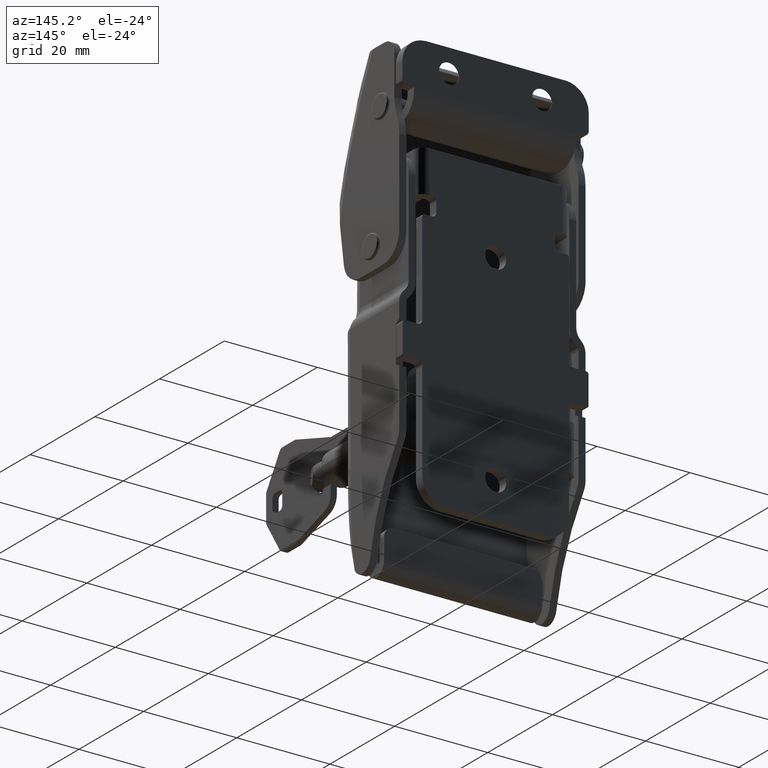
[diagram: clean part render]
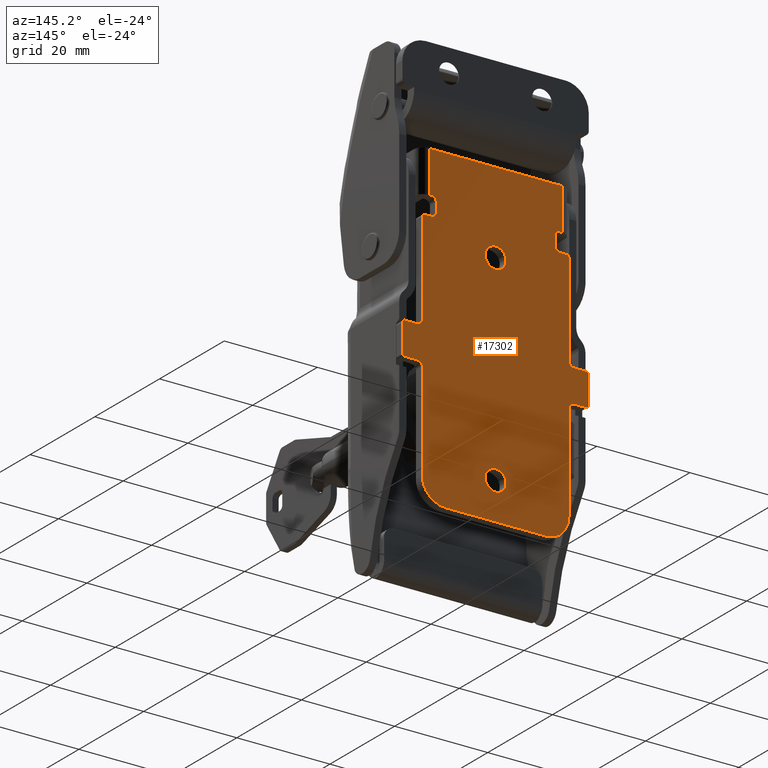
[diagram: same view with one face highlighted and labeled with its STEP entity id]
A machine part, auxiliary view. The second image highlights one B-rep face of the part: STEP entity #17302.
In plain terms, the highlighted face is a freeform B-spline surface patch.
Its self-contained STEP definition (entity closure, byte-faithful):
#14728=CARTESIAN_POINT('',(7.329959E-011,2.220446E-013,-40.750000000021203));
#14729=VERTEX_POINT('',#14728);
#14730=CARTESIAN_POINT('',(-2.243064000768788,2.221175E-013,-42.823467033903569));
#14731=VERTEX_POINT('',#14730);
#14732=CARTESIAN_POINT('',(7.329959E-011,2.220446E-013,-40.750000000021203));
#14733=CARTESIAN_POINT('',(-2.079878604799747,2.220446E-013,-40.750000000021188));
#14734=CARTESIAN_POINT('',(-2.243064000768788,2.221175E-013,-42.823467033903576));
#14742=(BOUNDED_CURVE()B_SPLINE_CURVE(2,(#14732,#14733,#14734),.UNSPECIFIED.,.F.,.U.)B_SPLINE_CURVE_WITH_KNOTS((3,3),(0.0,0.236331300521192),.UNSPECIFIED.)CURVE()GEOMETRIC_REPRESENTATION_ITEM()RATIONAL_B_SPLINE_CURVE((1.0,0.723120658735915,0.969723355938966))REPRESENTATION_ITEM(''));
#14743=EDGE_CURVE('',#14729,#14731,#14742,.T.);
#14745=CARTESIAN_POINT('',(2.243064000915386,2.221175E-013,-43.176532966138822));
#14746=VERTEX_POINT('',#14745);
#14747=CARTESIAN_POINT('',(2.243064000915386,2.221175E-013,-43.176532966138822));
#14748=CARTESIAN_POINT('',(2.250000000073299,2.220446E-013,-43.088402741521818));
#14749=CARTESIAN_POINT('',(2.250000000073299,2.220446E-013,-43.000000000021203));
#14750=CARTESIAN_POINT('',(2.250000000073299,2.220446E-013,-40.750000000021195));
#14751=CARTESIAN_POINT('',(7.329959E-011,2.220446E-013,-40.750000000021203));
#14759=(BOUNDED_CURVE()B_SPLINE_CURVE(2,(#14747,#14748,#14749,#14750,#14751),.UNSPECIFIED.,.F.,.U.)B_SPLINE_CURVE_WITH_KNOTS((3,2,3),(0.736331300521191,0.750000000000000,1.0),.UNSPECIFIED.)CURVE()GEOMETRIC_REPRESENTATION_ITEM()RATIONAL_B_SPLINE_CURVE((0.969723355938964,0.983986122450631,1.0,0.707106781186547,1.0))REPRESENTATION_ITEM(''));
#14760=EDGE_CURVE('',#14746,#14729,#14759,.T.);
#14827=CARTESIAN_POINT('',(7.329959E-011,2.220446E-013,-45.250000000021203));
#14828=VERTEX_POINT('',#14827);
#14829=CARTESIAN_POINT('',(-2.243064000768787,2.221175E-013,-42.823467033903569));
#14830=CARTESIAN_POINT('',(-2.249999999926700,2.220446E-013,-42.911597258520580));
#14831=CARTESIAN_POINT('',(-2.249999999926700,2.220446E-013,-43.000000000021203));
#14832=CARTESIAN_POINT('',(-2.249999999926700,2.220446E-013,-45.250000000021195));
#14833=CARTESIAN_POINT('',(7.329959E-011,2.220446E-013,-45.250000000021203));
#14841=(BOUNDED_CURVE()B_SPLINE_CURVE(2,(#14829,#14830,#14831,#14832,#14833),.UNSPECIFIED.,.F.,.U.)B_SPLINE_CURVE_WITH_KNOTS((3,2,3),(0.236331300521192,0.250000000000000,0.500000000000000),.UNSPECIFIED.)CURVE()GEOMETRIC_REPRESENTATION_ITEM()RATIONAL_B_SPLINE_CURVE((0.969723355938967,0.983986122450632,1.0,0.707106781186547,1.0))REPRESENTATION_ITEM(''));
#14842=EDGE_CURVE('',#14731,#14828,#14841,.T.);
#14876=CARTESIAN_POINT('',(7.329959E-011,2.220446E-013,-45.250000000021203));
#14877=CARTESIAN_POINT('',(2.079878604946338,2.220446E-013,-45.250000000021188));
#14878=CARTESIAN_POINT('',(2.243064000915386,2.221175E-013,-43.176532966138829));
#14886=(BOUNDED_CURVE()B_SPLINE_CURVE(2,(#14876,#14877,#14878),.UNSPECIFIED.,.F.,.U.)B_SPLINE_CURVE_WITH_KNOTS((3,3),(0.500000000000000,0.736331300521191),.UNSPECIFIED.)CURVE()GEOMETRIC_REPRESENTATION_ITEM()RATIONAL_B_SPLINE_CURVE((1.0,0.723120658735916,0.969723355938965))REPRESENTATION_ITEM(''));
#14887=EDGE_CURVE('',#14828,#14746,#14886,.T.);
#14910=CARTESIAN_POINT('',(-2.114575E-011,2.220446E-013,2.249999999978413));
#14911=VERTEX_POINT('',#14910);
#14912=CARTESIAN_POINT('',(-2.243064000863233,2.221175E-013,0.176532966096040));
#14913=VERTEX_POINT('',#14912);
#14914=CARTESIAN_POINT('',(-2.114575E-011,2.220446E-013,2.249999999978413));
#14915=CARTESIAN_POINT('',(-2.079878604894191,2.220446E-013,2.249999999978413));
#14916=CARTESIAN_POINT('',(-2.243064000863233,2.221175E-013,0.176532966096040));
#14924=(BOUNDED_CURVE()B_SPLINE_CURVE(2,(#14914,#14915,#14916),.UNSPECIFIED.,.F.,.U.)B_SPLINE_CURVE_WITH_KNOTS((3,3),(0.0,0.236331300521191),.UNSPECIFIED.)CURVE()GEOMETRIC_REPRESENTATION_ITEM()RATIONAL_B_SPLINE_CURVE((1.0,0.723120658735915,0.969723355938966))REPRESENTATION_ITEM(''));
#14925=EDGE_CURVE('',#14911,#14913,#14924,.T.);
#14927=CARTESIAN_POINT('',(2.243064000820941,2.221175E-013,-0.176532966139213));
#14928=VERTEX_POINT('',#14927);
#14929=CARTESIAN_POINT('',(2.243064000820941,2.221175E-013,-0.176532966139213));
#14930=CARTESIAN_POINT('',(2.249999999978854,2.220446E-013,-0.088402741522205));
#14931=CARTESIAN_POINT('',(2.249999999978854,2.220446E-013,-2.158629E-011));
#14932=CARTESIAN_POINT('',(2.249999999978853,2.220446E-013,2.249999999978414));
#14933=CARTESIAN_POINT('',(-2.114575E-011,2.220446E-013,2.249999999978413));
#14941=(BOUNDED_CURVE()B_SPLINE_CURVE(2,(#14929,#14930,#14931,#14932,#14933),.UNSPECIFIED.,.F.,.U.)B_SPLINE_CURVE_WITH_KNOTS((3,2,3),(0.736331300521191,0.750000000000000,1.0),.UNSPECIFIED.)CURVE()GEOMETRIC_REPRESENTATION_ITEM()RATIONAL_B_SPLINE_CURVE((0.969723355938966,0.983986122450632,1.0,0.707106781186547,1.0))REPRESENTATION_ITEM(''));
#14942=EDGE_CURVE('',#14928,#14911,#14941,.T.);
#15009=CARTESIAN_POINT('',(-2.114575E-011,2.220446E-013,-2.250000000021586));
#15010=VERTEX_POINT('',#15009);
#15011=CARTESIAN_POINT('',(-2.243064000863233,2.221175E-013,0.176532966096040));
#15012=CARTESIAN_POINT('',(-2.250000000021146,2.220446E-013,0.088402741479033));
#15013=CARTESIAN_POINT('',(-2.250000000021146,2.220446E-013,-2.158629E-011));
#15014=CARTESIAN_POINT('',(-2.250000000021146,2.220446E-013,-2.250000000021587));
#15015=CARTESIAN_POINT('',(-2.114575E-011,2.220446E-013,-2.250000000021586));
#15023=(BOUNDED_CURVE()B_SPLINE_CURVE(2,(#15011,#15012,#15013,#15014,#15015),.UNSPECIFIED.,.F.,.U.)B_SPLINE_CURVE_WITH_KNOTS((3,2,3),(0.236331300521191,0.250000000000000,0.500000000000000),.UNSPECIFIED.)CURVE()GEOMETRIC_REPRESENTATION_ITEM()RATIONAL_B_SPLINE_CURVE((0.969723355938966,0.983986122450632,1.0,0.707106781186547,1.0))REPRESENTATION_ITEM(''));
#15024=EDGE_CURVE('',#14913,#15010,#15023,.T.);
#15058=CARTESIAN_POINT('',(-2.114575E-011,2.220446E-013,-2.250000000021586));
#15059=CARTESIAN_POINT('',(2.079878604851892,2.220446E-013,-2.250000000021587));
#15060=CARTESIAN_POINT('',(2.243064000820941,2.221175E-013,-0.176532966139213));
#15068=(BOUNDED_CURVE()B_SPLINE_CURVE(2,(#15058,#15059,#15060),.UNSPECIFIED.,.F.,.U.)B_SPLINE_CURVE_WITH_KNOTS((3,3),(0.500000000000000,0.736331300521191),.UNSPECIFIED.)CURVE()GEOMETRIC_REPRESENTATION_ITEM()RATIONAL_B_SPLINE_CURVE((1.0,0.723120658735916,0.969723355938965))REPRESENTATION_ITEM(''));
#15069=EDGE_CURVE('',#15010,#14928,#15068,.T.);
#15298=CARTESIAN_POINT('',(-15.799999999835901,2.220446E-013,-37.500000000147651));
#15299=VERTEX_POINT('',#15298);
#15320=CARTESIAN_POINT('',(-15.799999999872750,2.220446E-013,-27.500000000147850));
#15321=VERTEX_POINT('',#15320);
#15335=CARTESIAN_POINT('',(-15.799999999835901,2.220446E-013,-37.500000000147651));
#15336=CARTESIAN_POINT('',(-15.799999999872750,2.220446E-013,-27.500000000147850));
#15337=QUASI_UNIFORM_CURVE('',1,(#15335,#15336),.UNSPECIFIED.,.F.,.U.);
#15338=EDGE_CURVE('',#15299,#15321,#15337,.T.);
#15387=CARTESIAN_POINT('',(-14.250000000066819,2.220446E-013,8.499999999797929));
#15388=VERTEX_POINT('',#15387);
#15409=CARTESIAN_POINT('',(-14.250000000099879,2.220446E-013,17.499999999951900));
#15410=VERTEX_POINT('',#15409);
#15424=CARTESIAN_POINT('',(-14.250000000066819,2.220446E-013,8.499999999797929));
#15425=CARTESIAN_POINT('',(-14.250000000099879,2.220446E-013,17.499999999951900));
#15426=QUASI_UNIFORM_CURVE('',1,(#15424,#15425),.UNSPECIFIED.,.F.,.U.);
#15427=EDGE_CURVE('',#15388,#15410,#15426,.T.);
#15448=CARTESIAN_POINT('',(14.249999999900000,2.220446E-013,17.500000000056950));
#15449=VERTEX_POINT('',#15448);
#15470=CARTESIAN_POINT('',(14.249999999933181,2.220446E-013,8.499999999933930));
#15471=VERTEX_POINT('',#15470);
#15485=CARTESIAN_POINT('',(14.249999999900000,2.220446E-013,17.500000000056950));
#15486=CARTESIAN_POINT('',(14.249999999933181,2.220446E-013,8.499999999933930));
#15487=QUASI_UNIFORM_CURVE('',1,(#15485,#15486),.UNSPECIFIED.,.F.,.U.);
#15488=EDGE_CURVE('',#15449,#15471,#15487,.T.);
#15721=CARTESIAN_POINT('',(16.750000000037250,2.220446E-013,-24.000000000016350));
#15722=VERTEX_POINT('',#15721);
#15723=CARTESIAN_POINT('',(15.750000000040901,2.220446E-013,-25.000000000019948));
#15724=VERTEX_POINT('',#15723);
#15725=CARTESIAN_POINT('',(16.750000000037250,2.220446E-013,-24.000000000016350));
#15726=CARTESIAN_POINT('',(16.335786437666723,2.220446E-013,-24.000000000016247));
#15727=CARTESIAN_POINT('',(16.042893218853049,2.220446E-013,-24.292893218831011));
#15728=CARTESIAN_POINT('',(15.750000000039375,2.220446E-013,-24.585786437645773));
#15729=CARTESIAN_POINT('',(15.750000000040901,2.220446E-013,-25.000000000019948));
#15737=(BOUNDED_CURVE()B_SPLINE_CURVE(2,(#15725,#15726,#15727,#15728,#15729),.UNSPECIFIED.,.F.,.U.)B_SPLINE_CURVE_WITH_KNOTS((3,2,3),(0.0,0.500000000000000,1.0),.UNSPECIFIED.)CURVE()GEOMETRIC_REPRESENTATION_ITEM()RATIONAL_B_SPLINE_CURVE((1.0,0.923879532510933,1.0,0.923879532510933,1.0))REPRESENTATION_ITEM(''));
#15738=EDGE_CURVE('',#15722,#15724,#15737,.T.);
#15777=CARTESIAN_POINT('',(19.450000000049648,2.220446E-013,-24.000000000006249));
#15778=VERTEX_POINT('',#15777);
#15779=CARTESIAN_POINT('',(19.450000000049648,2.220446E-013,-24.000000000006249));
#15780=CARTESIAN_POINT('',(16.750000000037250,2.220446E-013,-24.000000000016350));
#15781=QUASI_UNIFORM_CURVE('',1,(#15779,#15780),.UNSPECIFIED.,.F.,.U.);
#15782=EDGE_CURVE('',#15778,#15722,#15781,.T.);
#15814=CARTESIAN_POINT('',(19.950000000047801,2.220446E-013,-23.500000000004398));
#15815=VERTEX_POINT('',#15814);
#15816=CARTESIAN_POINT('',(19.450000000049648,2.220446E-013,-24.000000000006249));
#15817=CARTESIAN_POINT('',(19.950000000049641,2.220446E-013,-24.000000000004391));
#15818=CARTESIAN_POINT('',(19.950000000047801,2.220446E-013,-23.500000000004398));
#15826=(BOUNDED_CURVE()B_SPLINE_CURVE(2,(#15816,#15817,#15818),.UNSPECIFIED.,.F.,.U.)CURVE()GEOMETRIC_REPRESENTATION_ITEM()QUASI_UNIFORM_CURVE()RATIONAL_B_SPLINE_CURVE((1.0,0.707106781186550,1.0))REPRESENTATION_ITEM(''));
#15827=EDGE_CURVE('',#15778,#15815,#15826,.T.);
#15858=CARTESIAN_POINT('',(19.950000000025799,2.220446E-013,-17.500000000106599));
#15859=VERTEX_POINT('',#15858);
#15860=CARTESIAN_POINT('',(19.950000000025799,2.220446E-013,-17.500000000106599));
#15861=CARTESIAN_POINT('',(19.950000000047801,2.220446E-013,-23.500000000004398));
#15862=QUASI_UNIFORM_CURVE('',1,(#15860,#15861),.UNSPECIFIED.,.F.,.U.);
#15863=EDGE_CURVE('',#15859,#15815,#15862,.T.);
#15895=CARTESIAN_POINT('',(19.450000000024001,2.220446E-013,-17.000000000108450));
#15896=VERTEX_POINT('',#15895);
#15897=CARTESIAN_POINT('',(19.950000000025799,2.220446E-013,-17.500000000106599));
#15898=CARTESIAN_POINT('',(19.950000000023941,2.220446E-013,-17.000000000108457));
#15899=CARTESIAN_POINT('',(19.450000000024001,2.220446E-013,-17.000000000108450));
#15907=(BOUNDED_CURVE()B_SPLINE_CURVE(2,(#15897,#15898,#15899),.UNSPECIFIED.,.F.,.U.)CURVE()GEOMETRIC_REPRESENTATION_ITEM()QUASI_UNIFORM_CURVE()RATIONAL_B_SPLINE_CURVE((1.0,0.707106781187858,1.0))REPRESENTATION_ITEM(''));
#15908=EDGE_CURVE('',#15859,#15896,#15907,.T.);
#15939=CARTESIAN_POINT('',(16.750000000027349,2.220446E-013,-17.000000000118149));
#15940=VERTEX_POINT('',#15939);
#15941=CARTESIAN_POINT('',(16.750000000027349,2.220446E-013,-17.000000000118149));
#15942=CARTESIAN_POINT('',(19.450000000024001,2.220446E-013,-17.000000000108450));
#15943=QUASI_UNIFORM_CURVE('',1,(#15941,#15942),.UNSPECIFIED.,.F.,.U.);
#15944=EDGE_CURVE('',#15940,#15896,#15943,.T.);
#15976=CARTESIAN_POINT('',(15.750000000023650,2.220446E-013,-16.000000000121901));
#15977=VERTEX_POINT('',#15976);
#15978=CARTESIAN_POINT('',(15.750000000023650,2.220446E-013,-16.000000000121901));
#15979=CARTESIAN_POINT('',(15.750000000027402,2.220446E-013,-17.000000000121847));
#15980=CARTESIAN_POINT('',(16.750000000027349,2.220446E-013,-17.000000000118149));
#15988=(BOUNDED_CURVE()B_SPLINE_CURVE(2,(#15978,#15979,#15980),.UNSPECIFIED.,.F.,.U.)CURVE()GEOMETRIC_REPRESENTATION_ITEM()QUASI_UNIFORM_CURVE()RATIONAL_B_SPLINE_CURVE((1.0,0.707106781186566,1.0))REPRESENTATION_ITEM(''));
#15989=EDGE_CURVE('',#15977,#15940,#15988,.T.);
#16020=CARTESIAN_POINT('',(15.749999999950001,2.220446E-013,3.999999999940185));
#16021=VERTEX_POINT('',#16020);
#16022=CARTESIAN_POINT('',(15.749999999950001,2.220446E-013,3.999999999940185));
#16023=CARTESIAN_POINT('',(15.750000000023650,2.220446E-013,-16.000000000121901));
#16024=QUASI_UNIFORM_CURVE('',1,(#16022,#16023),.UNSPECIFIED.,.F.,.U.);
#16025=EDGE_CURVE('',#16021,#15977,#16024,.T.);
#16057=CARTESIAN_POINT('',(15.249999999947351,2.220446E-013,4.499999999938340));
#16058=VERTEX_POINT('',#16057);
#16059=CARTESIAN_POINT('',(15.749999999950001,2.220446E-013,3.999999999940185));
#16060=CARTESIAN_POINT('',(15.749999999948159,2.220446E-013,4.499999999938340));
#16061=CARTESIAN_POINT('',(15.249999999947351,2.220446E-013,4.499999999938340));
#16069=(BOUNDED_CURVE()B_SPLINE_CURVE(2,(#16059,#16060,#16061),.UNSPECIFIED.,.F.,.U.)CURVE()GEOMETRIC_REPRESENTATION_ITEM()QUASI_UNIFORM_CURVE()RATIONAL_B_SPLINE_CURVE((1.0,0.707106781187852,1.0))REPRESENTATION_ITEM(''));
#16070=EDGE_CURVE('',#16021,#16058,#16069,.T.);
#16101=CARTESIAN_POINT('',(13.749999999931740,2.220446E-013,4.499999999939019));
#16102=VERTEX_POINT('',#16101);
#16103=CARTESIAN_POINT('',(13.749999999931740,2.220446E-013,4.499999999939019));
#16104=CARTESIAN_POINT('',(15.249999999947351,2.220446E-013,4.499999999938340));
#16105=QUASI_UNIFORM_CURVE('',1,(#16103,#16104),.UNSPECIFIED.,.F.,.U.);
#16106=EDGE_CURVE('',#16102,#16058,#16105,.T.);
#16138=CARTESIAN_POINT('',(12.749999999930941,2.220446E-013,5.499999999938230));
#16139=VERTEX_POINT('',#16138);
#16140=CARTESIAN_POINT('',(12.749999999930941,2.220446E-013,5.499999999938230));
#16141=CARTESIAN_POINT('',(12.749999999931831,2.220446E-013,4.499999999938321));
#16142=CARTESIAN_POINT('',(13.749999999931740,2.220446E-013,4.499999999939019));
#16150=(BOUNDED_CURVE()B_SPLINE_CURVE(2,(#16140,#16141,#16142),.UNSPECIFIED.,.F.,.U.)CURVE()GEOMETRIC_REPRESENTATION_ITEM()QUASI_UNIFORM_CURVE()RATIONAL_B_SPLINE_CURVE((1.0,0.707106781186580,1.0))REPRESENTATION_ITEM(''));
#16151=EDGE_CURVE('',#16139,#16102,#16150,.T.);
#16182=CARTESIAN_POINT('',(12.749999999929599,2.220446E-013,7.499999999938320));
#16183=VERTEX_POINT('',#16182);
#16184=CARTESIAN_POINT('',(12.749999999929599,2.220446E-013,7.499999999938320));
#16185=CARTESIAN_POINT('',(12.749999999930941,2.220446E-013,5.499999999938230));
#16186=QUASI_UNIFORM_CURVE('',1,(#16184,#16185),.UNSPECIFIED.,.F.,.U.);
#16187=EDGE_CURVE('',#16183,#16139,#16186,.T.);
#16219=CARTESIAN_POINT('',(13.749999999932159,2.220446E-013,8.499999999931630));
#16220=VERTEX_POINT('',#16219);
#16221=CARTESIAN_POINT('',(13.749999999932159,2.220446E-013,8.499999999931630));
#16222=CARTESIAN_POINT('',(13.335786437556301,2.220446E-013,8.499999999939019));
#16223=CARTESIAN_POINT('',(13.042893218742810,2.220446E-013,8.207106781125319));
#16224=CARTESIAN_POINT('',(12.749999999929308,2.220446E-013,7.914213562311621));
#16225=CARTESIAN_POINT('',(12.749999999929599,2.220446E-013,7.499999999938320));
#16233=(BOUNDED_CURVE()B_SPLINE_CURVE(2,(#16221,#16222,#16223,#16224,#16225),.UNSPECIFIED.,.F.,.U.)B_SPLINE_CURVE_WITH_KNOTS((3,2,3),(0.0,0.500000000000000,1.0),.UNSPECIFIED.)CURVE()GEOMETRIC_REPRESENTATION_ITEM()RATIONAL_B_SPLINE_CURVE((1.0,0.923879532511220,1.0,0.923879532511220,1.0))REPRESENTATION_ITEM(''));
#16234=EDGE_CURVE('',#16220,#16183,#16233,.T.);
#16267=CARTESIAN_POINT('',(14.249999999933181,2.220446E-013,8.499999999933930));
#16268=CARTESIAN_POINT('',(13.749999999932159,2.220446E-013,8.499999999931630));
#16269=QUASI_UNIFORM_CURVE('',1,(#16267,#16268),.UNSPECIFIED.,.F.,.U.);
#16270=EDGE_CURVE('',#15471,#16220,#16269,.T.);
#16318=CARTESIAN_POINT('',(-14.250000000099879,2.220446E-013,17.499999999951900));
#16319=CARTESIAN_POINT('',(14.249999999900000,2.220446E-013,17.500000000056950));
#16320=QUASI_UNIFORM_CURVE('',1,(#16318,#16319),.UNSPECIFIED.,.F.,.U.);
#16321=EDGE_CURVE('',#15410,#15449,#16320,.T.);
#16370=CARTESIAN_POINT('',(-13.750000000006199,2.220446E-013,8.499999999878510));
#16371=VERTEX_POINT('',#16370);
#16372=CARTESIAN_POINT('',(-13.750000000006199,2.220446E-013,8.499999999878510));
#16373=CARTESIAN_POINT('',(-14.250000000066819,2.220446E-013,8.499999999797929));
#16374=QUASI_UNIFORM_CURVE('',1,(#16372,#16373),.UNSPECIFIED.,.F.,.U.);
#16375=EDGE_CURVE('',#16371,#15388,#16374,.T.);
#16408=CARTESIAN_POINT('',(-12.750000000005500,2.220446E-013,7.499999999882320));
#16409=VERTEX_POINT('',#16408);
#16410=CARTESIAN_POINT('',(-12.750000000005500,2.220446E-013,7.499999999882320));
#16411=CARTESIAN_POINT('',(-12.750000000009312,2.220446E-013,8.499999999878511));
#16412=CARTESIAN_POINT('',(-13.750000000006199,2.220446E-013,8.499999999878510));
#16420=(BOUNDED_CURVE()B_SPLINE_CURVE(2,(#16410,#16411,#16412),.UNSPECIFIED.,.F.,.U.)CURVE()GEOMETRIC_REPRESENTATION_ITEM()QUASI_UNIFORM_CURVE()RATIONAL_B_SPLINE_CURVE((1.0,0.707106781187894,1.0))REPRESENTATION_ITEM(''));
#16421=EDGE_CURVE('',#16409,#16371,#16420,.T.);
#16452=CARTESIAN_POINT('',(-12.749999999998121,2.220446E-013,5.499999999882310));
#16453=VERTEX_POINT('',#16452);
#16454=CARTESIAN_POINT('',(-12.749999999998121,2.220446E-013,5.499999999882310));
#16455=CARTESIAN_POINT('',(-12.750000000005500,2.220446E-013,7.499999999882320));
#16456=QUASI_UNIFORM_CURVE('',1,(#16454,#16455),.UNSPECIFIED.,.F.,.U.);
#16457=EDGE_CURVE('',#16453,#16409,#16456,.T.);
#16489=CARTESIAN_POINT('',(-13.749999999999099,2.220446E-013,4.499999999878510));
#16490=VERTEX_POINT('',#16489);
#16491=CARTESIAN_POINT('',(-13.749999999999099,2.220446E-013,4.499999999878510));
#16492=CARTESIAN_POINT('',(-13.335786437624643,2.220446E-013,4.499999999878224));
#16493=CARTESIAN_POINT('',(-13.042893218810621,2.220446E-013,4.792893218693037));
#16494=CARTESIAN_POINT('',(-12.749999999996597,2.220446E-013,5.085786437507849));
#16495=CARTESIAN_POINT('',(-12.749999999998121,2.220446E-013,5.499999999882310));
#16503=(BOUNDED_CURVE()B_SPLINE_CURVE(2,(#16491,#16492,#16493,#16494,#16495),.UNSPECIFIED.,.F.,.U.)B_SPLINE_CURVE_WITH_KNOTS((3,2,3),(0.0,0.500000000000000,1.0),.UNSPECIFIED.)CURVE()GEOMETRIC_REPRESENTATION_ITEM()RATIONAL_B_SPLINE_CURVE((1.0,0.923879532510841,1.0,0.923879532510841,1.0))REPRESENTATION_ITEM(''));
#16504=EDGE_CURVE('',#16490,#16453,#16503,.T.);
#16537=CARTESIAN_POINT('',(-15.250000000051850,2.220446E-013,4.499999999878795));
#16538=VERTEX_POINT('',#16537);
#16539=CARTESIAN_POINT('',(-15.250000000051850,2.220446E-013,4.499999999878795));
#16540=CARTESIAN_POINT('',(-13.749999999999099,2.220446E-013,4.499999999878510));
#16541=QUASI_UNIFORM_CURVE('',1,(#16539,#16540),.UNSPECIFIED.,.F.,.U.);
#16542=EDGE_CURVE('',#16538,#16490,#16541,.T.);
#16574=CARTESIAN_POINT('',(-15.750000000050351,2.220446E-013,3.999999999877035));
#16575=VERTEX_POINT('',#16574);
#16576=CARTESIAN_POINT('',(-15.250000000051850,2.220446E-013,4.499999999878795));
#16577=CARTESIAN_POINT('',(-15.457106781237059,2.220446E-013,4.499999999878796));
#16578=CARTESIAN_POINT('',(-15.603553390643899,2.220446E-013,4.353553390471446));
#16579=CARTESIAN_POINT('',(-15.750000000050729,2.220446E-013,4.207106781064098));
#16580=CARTESIAN_POINT('',(-15.750000000050351,2.220446E-013,3.999999999877035));
#16588=(BOUNDED_CURVE()B_SPLINE_CURVE(2,(#16576,#16577,#16578,#16579,#16580),.UNSPECIFIED.,.F.,.U.)B_SPLINE_CURVE_WITH_KNOTS((3,2,3),(0.0,0.500000000000000,1.0),.UNSPECIFIED.)CURVE()GEOMETRIC_REPRESENTATION_ITEM()RATIONAL_B_SPLINE_CURVE((1.0,0.923879532510950,1.0,0.923879532510950,1.0))REPRESENTATION_ITEM(''));
#16589=EDGE_CURVE('',#16538,#16575,#16588,.T.);
#16622=CARTESIAN_POINT('',(-15.749999999976350,2.220446E-013,-16.000000000247699));
#16623=VERTEX_POINT('',#16622);
#16624=CARTESIAN_POINT('',(-15.749999999976350,2.220446E-013,-16.000000000247699));
#16625=CARTESIAN_POINT('',(-15.750000000050351,2.220446E-013,3.999999999877035));
#16626=QUASI_UNIFORM_CURVE('',1,(#16624,#16625),.UNSPECIFIED.,.F.,.U.);
#16627=EDGE_CURVE('',#16623,#16575,#16626,.T.);
#16659=CARTESIAN_POINT('',(-16.749999999975849,2.220446E-013,-17.000000000251902));
#16660=VERTEX_POINT('',#16659);
#16661=CARTESIAN_POINT('',(-16.749999999975849,2.220446E-013,-17.000000000251902));
#16662=CARTESIAN_POINT('',(-16.335786437601822,2.220446E-013,-17.000000000251188));
#16663=CARTESIAN_POINT('',(-16.042893218788318,2.220446E-013,-16.707106781436462));
#16664=CARTESIAN_POINT('',(-15.749999999974817,2.220446E-013,-16.414213562621736));
#16665=CARTESIAN_POINT('',(-15.749999999976350,2.220446E-013,-16.000000000247699));
#16673=(BOUNDED_CURVE()B_SPLINE_CURVE(2,(#16661,#16662,#16663,#16664,#16665),.UNSPECIFIED.,.F.,.U.)B_SPLINE_CURVE_WITH_KNOTS((3,2,3),(0.0,0.500000000000000,1.0),.UNSPECIFIED.)CURVE()GEOMETRIC_REPRESENTATION_ITEM()RATIONAL_B_SPLINE_CURVE((1.0,0.923879532510981,1.0,0.923879532510981,1.0))REPRESENTATION_ITEM(''));
#16674=EDGE_CURVE('',#16660,#16623,#16673,.T.);
#16707=CARTESIAN_POINT('',(-19.449999999992350,2.220446E-013,-17.000000000251401));
#16708=VERTEX_POINT('',#16707);
#16709=CARTESIAN_POINT('',(-19.449999999992350,2.220446E-013,-17.000000000251401));
#16710=CARTESIAN_POINT('',(-16.749999999975849,2.220446E-013,-17.000000000251902));
#16711=QUASI_UNIFORM_CURVE('',1,(#16709,#16710),.UNSPECIFIED.,.F.,.U.);
#16712=EDGE_CURVE('',#16708,#16660,#16711,.T.);
#16744=CARTESIAN_POINT('',(-19.949999999992048,2.220446E-013,-17.500000000251749));
#16745=VERTEX_POINT('',#16744);
#16746=CARTESIAN_POINT('',(-19.449999999992350,2.220446E-013,-17.000000000251401));
#16747=CARTESIAN_POINT('',(-19.657106781178697,2.220446E-013,-17.000000000251404));
#16748=CARTESIAN_POINT('',(-19.803553390585449,2.220446E-013,-17.146446609658248));
#16749=CARTESIAN_POINT('',(-19.949999999992198,2.220446E-013,-17.292893219065107));
#16750=CARTESIAN_POINT('',(-19.949999999992048,2.220446E-013,-17.500000000251749));
#16758=(BOUNDED_CURVE()B_SPLINE_CURVE(2,(#16746,#16747,#16748,#16749,#16750),.UNSPECIFIED.,.F.,.U.)B_SPLINE_CURVE_WITH_KNOTS((3,2,3),(0.0,0.500000000000000,1.0),.UNSPECIFIED.)CURVE()GEOMETRIC_REPRESENTATION_ITEM()RATIONAL_B_SPLINE_CURVE((1.0,0.923879532511220,1.0,0.923879532511220,1.0))REPRESENTATION_ITEM(''));
#16759=EDGE_CURVE('',#16708,#16745,#16758,.T.);
#16792=CARTESIAN_POINT('',(-19.949999999990599,2.220446E-013,-23.500000000151349));
#16793=VERTEX_POINT('',#16792);
#16794=CARTESIAN_POINT('',(-19.949999999990599,2.220446E-013,-23.500000000151349));
#16795=CARTESIAN_POINT('',(-19.949999999992048,2.220446E-013,-17.500000000251749));
#16796=QUASI_UNIFORM_CURVE('',1,(#16794,#16795),.UNSPECIFIED.,.F.,.U.);
#16797=EDGE_CURVE('',#16793,#16745,#16796,.T.);
#16829=CARTESIAN_POINT('',(-19.449999999988751,2.220446E-013,-24.000000000149701));
#16830=VERTEX_POINT('',#16829);
#16831=CARTESIAN_POINT('',(-19.949999999990599,2.220446E-013,-23.500000000151349));
#16832=CARTESIAN_POINT('',(-19.949999999988751,2.220446E-013,-24.000000000151356));
#16833=CARTESIAN_POINT('',(-19.449999999988751,2.220446E-013,-24.000000000149701));
#16841=(BOUNDED_CURVE()B_SPLINE_CURVE(2,(#16831,#16832,#16833),.UNSPECIFIED.,.F.,.U.)CURVE()GEOMETRIC_REPRESENTATION_ITEM()QUASI_UNIFORM_CURVE()RATIONAL_B_SPLINE_CURVE((1.0,0.707106781186550,1.0))REPRESENTATION_ITEM(''));
#16842=EDGE_CURVE('',#16793,#16830,#16841,.T.);
#16873=CARTESIAN_POINT('',(-16.749999999947551,2.220446E-013,-24.000000000143402));
#16874=VERTEX_POINT('',#16873);
#16875=CARTESIAN_POINT('',(-16.749999999947551,2.220446E-013,-24.000000000143402));
#16876=CARTESIAN_POINT('',(-19.449999999988751,2.220446E-013,-24.000000000149701));
#16877=QUASI_UNIFORM_CURVE('',1,(#16875,#16876),.UNSPECIFIED.,.F.,.U.);
#16878=EDGE_CURVE('',#16874,#16830,#16877,.T.);
#16910=CARTESIAN_POINT('',(-15.749999999943849,2.220446E-013,-25.000000000139750));
#16911=VERTEX_POINT('',#16910);
#16912=CARTESIAN_POINT('',(-15.749999999943849,2.220446E-013,-25.000000000139750));
#16913=CARTESIAN_POINT('',(-15.749999999947498,2.220446E-013,-24.000000000143391));
#16914=CARTESIAN_POINT('',(-16.749999999947551,2.220446E-013,-24.000000000143402));
#16922=(BOUNDED_CURVE()B_SPLINE_CURVE(2,(#16912,#16913,#16914),.UNSPECIFIED.,.F.,.U.)CURVE()GEOMETRIC_REPRESENTATION_ITEM()QUASI_UNIFORM_CURVE()RATIONAL_B_SPLINE_CURVE((1.0,0.707106781187838,1.0))REPRESENTATION_ITEM(''));
#16923=EDGE_CURVE('',#16911,#16874,#16922,.T.);
#16954=CARTESIAN_POINT('',(-15.749999999934650,2.220446E-013,-27.500000000147651));
#16955=VERTEX_POINT('',#16954);
#16956=CARTESIAN_POINT('',(-15.749999999934650,2.220446E-013,-27.500000000147651));
#16957=CARTESIAN_POINT('',(-15.749999999943849,2.220446E-013,-25.000000000139750));
#16958=QUASI_UNIFORM_CURVE('',1,(#16956,#16957),.UNSPECIFIED.,.F.,.U.);
#16959=EDGE_CURVE('',#16955,#16911,#16958,.T.);
#16998=CARTESIAN_POINT('',(-15.799999999872750,2.220446E-013,-27.500000000147850));
#16999=CARTESIAN_POINT('',(-15.749999999934650,2.220446E-013,-27.500000000147651));
#17000=QUASI_UNIFORM_CURVE('',1,(#16998,#16999),.UNSPECIFIED.,.F.,.U.);
#17001=EDGE_CURVE('',#15321,#16955,#17000,.T.);
#17032=CARTESIAN_POINT('',(-15.749999999896501,2.220446E-013,-37.500000000147402));
#17033=VERTEX_POINT('',#17032);
#17034=CARTESIAN_POINT('',(-15.749999999896501,2.220446E-013,-37.500000000147402));
#17035=CARTESIAN_POINT('',(-15.799999999835901,2.220446E-013,-37.500000000147651));
#17036=QUASI_UNIFORM_CURVE('',1,(#17034,#17035),.UNSPECIFIED.,.F.,.U.);
#17037=EDGE_CURVE('',#17033,#15299,#17036,.T.);
#17062=CARTESIAN_POINT('',(-15.749999999864050,2.220446E-013,-46.000000000147402));
#17063=VERTEX_POINT('',#17062);
#17064=CARTESIAN_POINT('',(-15.749999999864050,2.220446E-013,-46.000000000147402));
#17065=CARTESIAN_POINT('',(-15.749999999896501,2.220446E-013,-37.500000000147402));
#17066=QUASI_UNIFORM_CURVE('',1,(#17064,#17065),.UNSPECIFIED.,.F.,.U.);
#17067=EDGE_CURVE('',#17063,#17033,#17066,.T.);
#17099=CARTESIAN_POINT('',(-10.749999999845800,2.220446E-013,-51.000000000128999));
#17100=VERTEX_POINT('',#17099);
#17101=CARTESIAN_POINT('',(-15.749999999864020,2.220446E-013,-46.000000000147402));
#17102=CARTESIAN_POINT('',(-15.749999999845624,2.220446E-013,-51.000000000147217));
#17103=CARTESIAN_POINT('',(-10.749999999845800,2.220446E-013,-51.000000000128999));
#17111=(BOUNDED_CURVE()B_SPLINE_CURVE(2,(#17101,#17102,#17103),.UNSPECIFIED.,.F.,.U.)CURVE()GEOMETRIC_REPRESENTATION_ITEM()QUASI_UNIFORM_CURVE()RATIONAL_B_SPLINE_CURVE((1.0,0.707106781186561,1.0))REPRESENTATION_ITEM(''));
#17112=EDGE_CURVE('',#17063,#17100,#17111,.T.);
#17143=CARTESIAN_POINT('',(10.750000000104720,2.220446E-013,-51.000000000049702));
#17144=VERTEX_POINT('',#17143);
#17145=CARTESIAN_POINT('',(10.750000000104720,2.220446E-013,-51.000000000049702));
#17146=CARTESIAN_POINT('',(-10.749999999845800,2.220446E-013,-51.000000000128999));
#17147=QUASI_UNIFORM_CURVE('',1,(#17145,#17146),.UNSPECIFIED.,.F.,.U.);
#17148=EDGE_CURVE('',#17144,#17100,#17147,.T.);
#17180=CARTESIAN_POINT('',(15.750000000086301,2.220446E-013,-46.000000000031200));
#17181=VERTEX_POINT('',#17180);
#17182=CARTESIAN_POINT('',(10.750000000104720,2.220446E-013,-51.000000000049702));
#17183=CARTESIAN_POINT('',(12.821067811970220,2.220446E-013,-51.000000000042071));
#17184=CARTESIAN_POINT('',(14.285533906032089,2.220446E-013,-49.535533905969388));
#17185=CARTESIAN_POINT('',(15.750000000093964,2.220446E-013,-48.071067811896697));
#17186=CARTESIAN_POINT('',(15.750000000086301,2.220446E-013,-46.000000000031200));
#17194=(BOUNDED_CURVE()B_SPLINE_CURVE(2,(#17182,#17183,#17184,#17185,#17186),.UNSPECIFIED.,.F.,.U.)B_SPLINE_CURVE_WITH_KNOTS((3,2,3),(0.0,0.500000000000000,1.0),.UNSPECIFIED.)CURVE()GEOMETRIC_REPRESENTATION_ITEM()RATIONAL_B_SPLINE_CURVE((1.0,0.923879532511285,1.0,0.923879532511285,1.0))REPRESENTATION_ITEM(''));
#17195=EDGE_CURVE('',#17144,#17181,#17194,.T.);
#17228=CARTESIAN_POINT('',(15.750000000040901,2.220446E-013,-25.000000000019948));
#17229=CARTESIAN_POINT('',(15.750000000086301,2.220446E-013,-46.000000000031200));
#17230=QUASI_UNIFORM_CURVE('',1,(#17228,#17229),.UNSPECIFIED.,.F.,.U.);
#17231=EDGE_CURVE('',#15724,#17181,#17230,.T.);
#17243=CARTESIAN_POINT('',(-21.943005671765398,2.842171E-013,20.921574867299949));
#17244=CARTESIAN_POINT('',(21.943006028554951,2.842171E-013,20.921574867299949));
#17245=CARTESIAN_POINT('',(-21.943005671765398,2.842171E-013,-54.421576704685179));
#17246=CARTESIAN_POINT('',(21.943006028554951,2.842171E-013,-54.421576704685179));
#17247=B_SPLINE_SURFACE_WITH_KNOTS('',1,1,((#17243,#17245),(#17244,#17246)),.UNSPECIFIED.,.F.,.F.,.U.,(2,2),(2,2),(0.0,43.886011700320353),(0.0,75.343151571985132),.UNSPECIFIED.);
#17248=ORIENTED_EDGE('',*,*,#17037,.T.);
#17249=ORIENTED_EDGE('',*,*,#15338,.T.);
#17250=ORIENTED_EDGE('',*,*,#17001,.T.);
#17251=ORIENTED_EDGE('',*,*,#16959,.T.);
#17252=ORIENTED_EDGE('',*,*,#16923,.T.);
#17253=ORIENTED_EDGE('',*,*,#16878,.T.);
#17254=ORIENTED_EDGE('',*,*,#16842,.F.);
#17255=ORIENTED_EDGE('',*,*,#16797,.T.);
#17256=ORIENTED_EDGE('',*,*,#16759,.F.);
#17257=ORIENTED_EDGE('',*,*,#16712,.T.);
#17258=ORIENTED_EDGE('',*,*,#16674,.T.);
#17259=ORIENTED_EDGE('',*,*,#16627,.T.);
#17260=ORIENTED_EDGE('',*,*,#16589,.F.);
#17261=ORIENTED_EDGE('',*,*,#16542,.T.);
#17262=ORIENTED_EDGE('',*,*,#16504,.T.);
#17263=ORIENTED_EDGE('',*,*,#16457,.T.);
#17264=ORIENTED_EDGE('',*,*,#16421,.T.);
#17265=ORIENTED_EDGE('',*,*,#16375,.T.);
#17266=ORIENTED_EDGE('',*,*,#15427,.T.);
#17267=ORIENTED_EDGE('',*,*,#16321,.T.);
#17268=ORIENTED_EDGE('',*,*,#15488,.T.);
#17269=ORIENTED_EDGE('',*,*,#16270,.T.);
#17270=ORIENTED_EDGE('',*,*,#16234,.T.);
#17271=ORIENTED_EDGE('',*,*,#16187,.T.);
#17272=ORIENTED_EDGE('',*,*,#16151,.T.);
#17273=ORIENTED_EDGE('',*,*,#16106,.T.);
#17274=ORIENTED_EDGE('',*,*,#16070,.F.);
#17275=ORIENTED_EDGE('',*,*,#16025,.T.);
#17276=ORIENTED_EDGE('',*,*,#15989,.T.);
#17277=ORIENTED_EDGE('',*,*,#15944,.T.);
#17278=ORIENTED_EDGE('',*,*,#15908,.F.);
#17279=ORIENTED_EDGE('',*,*,#15863,.T.);
#17280=ORIENTED_EDGE('',*,*,#15827,.F.);
#17281=ORIENTED_EDGE('',*,*,#15782,.T.);
#17282=ORIENTED_EDGE('',*,*,#15738,.T.);
#17283=ORIENTED_EDGE('',*,*,#17231,.T.);
#17284=ORIENTED_EDGE('',*,*,#17195,.F.);
#17285=ORIENTED_EDGE('',*,*,#17148,.T.);
#17286=ORIENTED_EDGE('',*,*,#17112,.F.);
#17287=ORIENTED_EDGE('',*,*,#17067,.T.);
#17288=EDGE_LOOP('',(#17248,#17249,#17250,#17251,#17252,#17253,#17254,#17255,#17256,#17257,#17258,#17259,#17260,#17261,#17262,#17263,#17264,#17265,#17266,#17267,#17268,#17269,#17270,#17271,#17272,#17273,#17274,#17275,#17276,#17277,#17278,#17279,#17280,#17281,#17282,#17283,#17284,#17285,#17286,#17287));
#17289=FACE_OUTER_BOUND('',#17288,.T.);
#17290=ORIENTED_EDGE('',*,*,#15069,.T.);
#17291=ORIENTED_EDGE('',*,*,#14942,.T.);
#17292=ORIENTED_EDGE('',*,*,#14925,.T.);
#17293=ORIENTED_EDGE('',*,*,#15024,.T.);
#17294=EDGE_LOOP('',(#17290,#17291,#17292,#17293));
#17295=FACE_BOUND('',#17294,.T.);
#17296=ORIENTED_EDGE('',*,*,#14887,.T.);
#17297=ORIENTED_EDGE('',*,*,#14760,.T.);
#17298=ORIENTED_EDGE('',*,*,#14743,.T.);
#17299=ORIENTED_EDGE('',*,*,#14842,.T.);
#17300=EDGE_LOOP('',(#17296,#17297,#17298,#17299));
#17301=FACE_BOUND('',#17300,.T.);
#17302=ADVANCED_FACE('',(#17289,#17295,#17301),#17247,.T.);